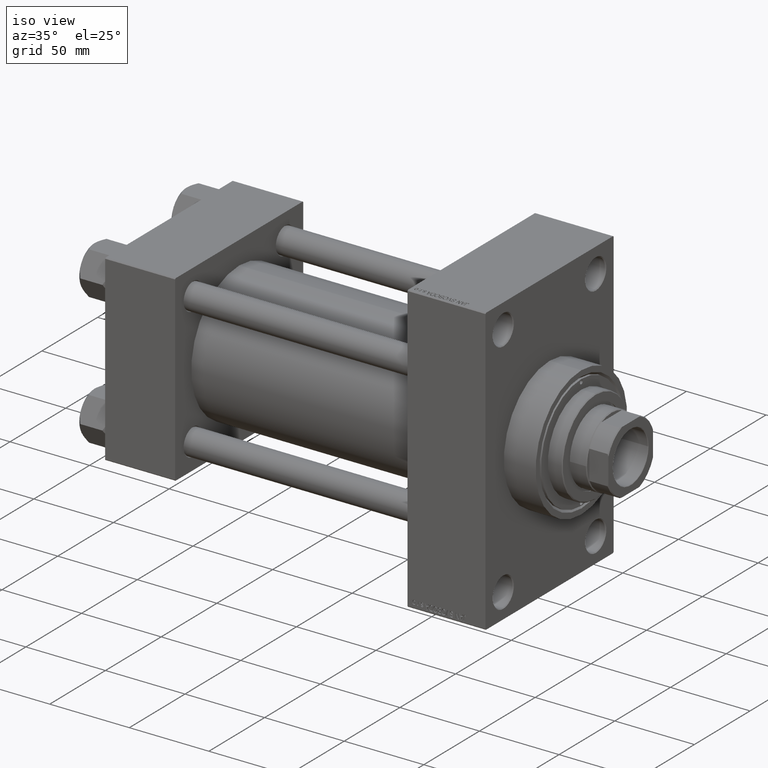
[diagram: clean part render]
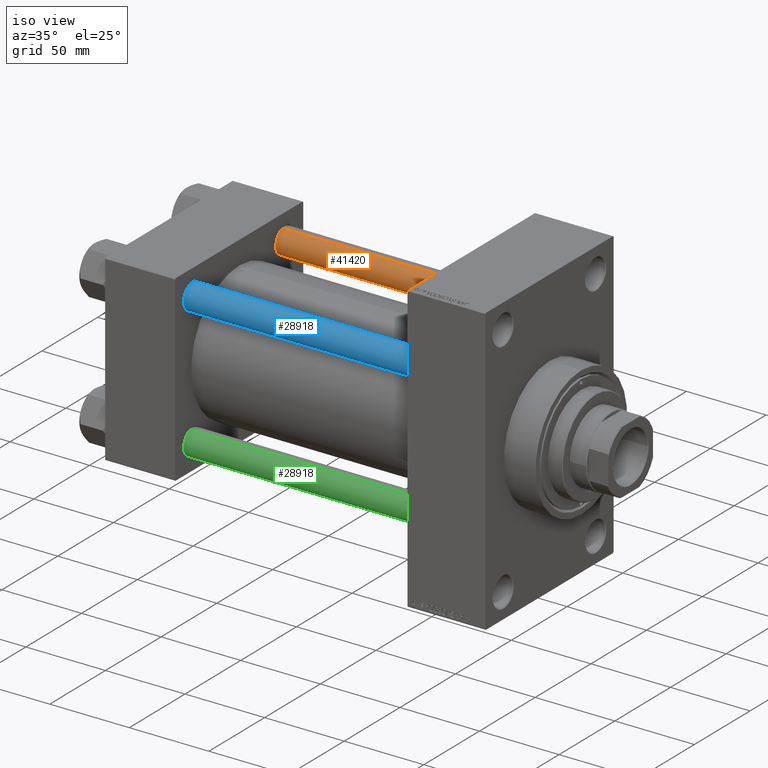
[diagram: same view with three faces highlighted in distinct colors, each labeled with its STEP entity id]
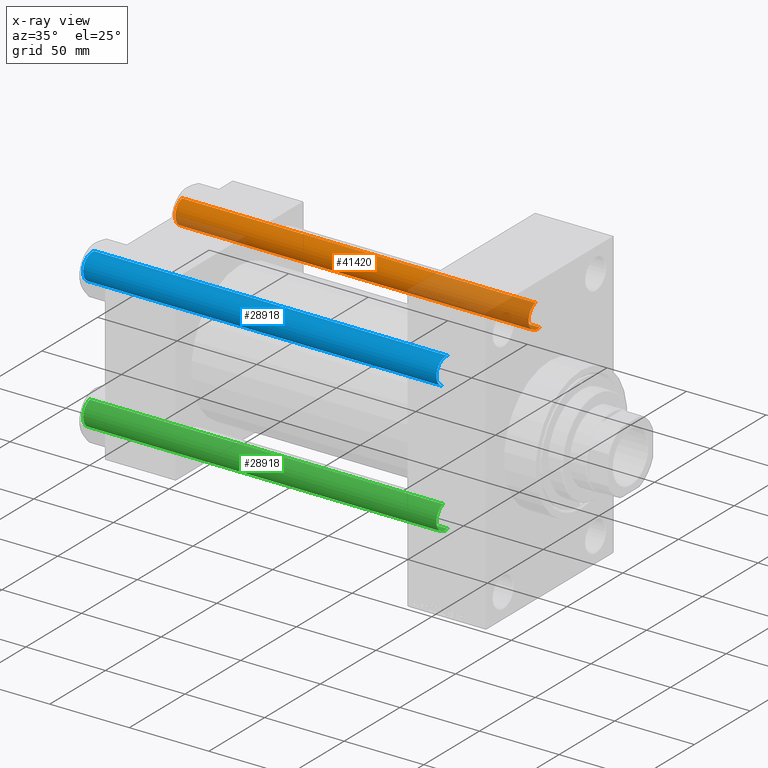
[diagram: x-ray of the same camera — body ghosted, the three highlighted faces saturated]
A machine part, iso view with three faces highlighted in distinct colors.
The next image is the same camera in x-ray (body ghosted, the three faces saturated) — at least one of them is partly hidden behind the body in this view.
Their STEP definitions:

[orange] entity #41420 — the highlighted cylindrical surface (edge-blend (fillet) strip) has radius 8 mm, axis along (-1, -0, 0).
#1560 = VECTOR ( 'NONE', #42982, 1000.000000000000000 ) ;
#3938 = ORIENTED_EDGE ( 'NONE', *, *, #11647, .F. ) ;
#11647 = EDGE_CURVE ( 'NONE', #42482, #12920, #19890, .T. ) ;
#12787 = CARTESIAN_POINT ( 'NONE',  ( 8.000000000000000000, 9.797174393178823685E-16, 222.5000000000001137 ) ) ;
#12920 = VERTEX_POINT ( 'NONE', #21043 ) ;
#13077 = AXIS2_PLACEMENT_3D ( 'NONE', #30745, #45525, #20309 ) ;
#13567 = EDGE_CURVE ( 'NONE', #39512, #25557, #38404, .T. ) ;
#17083 = CARTESIAN_POINT ( 'NONE',  ( -8.000000000000000000, 0.000000000000000000, 223.0000000000000000 ) ) ;
#17376 = AXIS2_PLACEMENT_3D ( 'NONE', #18188, #22275, #36366 ) ;
#18188 = CARTESIAN_POINT ( 'NONE',  ( 0.000000000000000000, 0.000000000000000000, 222.5000000000001137 ) ) ;
#18619 = ORIENTED_EDGE ( 'NONE', *, *, #27924, .T. ) ;
#19258 = VECTOR ( 'NONE', #31038, 1000.000000000000000 ) ;
#19890 = LINE ( 'NONE', #26909, #19258 ) ;
#20309 = DIRECTION ( 'NONE',  ( 1.000000000000000000, 0.000000000000000000, 0.000000000000000000 ) ) ;
#21043 = CARTESIAN_POINT ( 'NONE',  ( 8.000000000000000000, 9.797174393178823685E-16, 0.5000000000001669775 ) ) ;
#21135 = AXIS2_PLACEMENT_3D ( 'NONE', #21983, #44520, #29974 ) ;
#21983 = CARTESIAN_POINT ( 'NONE',  ( 0.000000000000000000, 0.000000000000000000, 223.0000000000000000 ) ) ;
#22275 = DIRECTION ( 'NONE',  ( 0.000000000000000000, 0.000000000000000000, -1.000000000000000000 ) ) ;
#24668 = ORIENTED_EDGE ( 'NONE', *, *, #44288, .T. ) ;
#25557 = VERTEX_POINT ( 'NONE', #31954 ) ;
#26909 = CARTESIAN_POINT ( 'NONE',  ( 8.000000000000000000, 9.797174393178823685E-16, 223.0000000000000000 ) ) ;
#27924 = EDGE_CURVE ( 'NONE', #25557, #12920, #33948, .T. ) ;
#29258 = CYLINDRICAL_SURFACE ( 'NONE', #21135, 8.000000000000000000 ) ;
#29745 = CIRCLE ( 'NONE', #17376, 8.000000000000000000 ) ;
#29974 = DIRECTION ( 'NONE',  ( -1.000000000000000000, 0.000000000000000000, 0.000000000000000000 ) ) ;
#30745 = CARTESIAN_POINT ( 'NONE',  ( 0.000000000000000000, 0.000000000000000000, 0.5000000000001669775 ) ) ;
#31038 = DIRECTION ( 'NONE',  ( -0.000000000000000000, -0.000000000000000000, -1.000000000000000000 ) ) ;
#31954 = CARTESIAN_POINT ( 'NONE',  ( -8.000000000000000000, 0.000000000000000000, 0.5000000000001669775 ) ) ;
#33234 = EDGE_LOOP ( 'NONE', ( #3938, #24668, #43081, #18619 ) ) ;
#33948 = CIRCLE ( 'NONE', #13077, 8.000000000000000000 ) ;
#36366 = DIRECTION ( 'NONE',  ( 1.000000000000000000, 0.000000000000000000, 0.000000000000000000 ) ) ;
#38404 = LINE ( 'NONE', #17083, #1560 ) ;
#38898 = CARTESIAN_POINT ( 'NONE',  ( -8.000000000000000000, 0.000000000000000000, 222.5000000000001137 ) ) ;
#39512 = VERTEX_POINT ( 'NONE', #38898 ) ;
#40646 = FACE_OUTER_BOUND ( 'NONE', #33234, .T. ) ;
#41420 = ADVANCED_FACE ( 'NONE', ( #40646 ), #29258, .T. ) ;
#42482 = VERTEX_POINT ( 'NONE', #12787 ) ;
#42982 = DIRECTION ( 'NONE',  ( -0.000000000000000000, -0.000000000000000000, -1.000000000000000000 ) ) ;
#43081 = ORIENTED_EDGE ( 'NONE', *, *, #13567, .T. ) ;
#44288 = EDGE_CURVE ( 'NONE', #42482, #39512, #29745, .T. ) ;
#44520 = DIRECTION ( 'NONE',  ( -0.000000000000000000, -0.000000000000000000, -1.000000000000000000 ) ) ;
#45525 = DIRECTION ( 'NONE',  ( -0.000000000000000000, -0.000000000000000000, 1.000000000000000000 ) ) ;

[blue] entity #28918 — the highlighted cylindrical surface (edge-blend (fillet) strip) has radius 8 mm, axis along (1, 0, 0).
#1560 = VECTOR ( 'NONE', #42982, 1000.000000000000000 ) ;
#2893 = ORIENTED_EDGE ( 'NONE', *, *, #13567, .F. ) ;
#4607 = AXIS2_PLACEMENT_3D ( 'NONE', #21980, #25378, #24899 ) ;
#5503 = DIRECTION ( 'NONE',  ( 0.000000000000000000, 0.000000000000000000, -1.000000000000000000 ) ) ;
#6268 = CIRCLE ( 'NONE', #29442, 8.000000000000000000 ) ;
#7584 = ORIENTED_EDGE ( 'NONE', *, *, #31829, .T. ) ;
#9920 = CARTESIAN_POINT ( 'NONE',  ( 0.000000000000000000, 0.000000000000000000, 0.5000000000001669775 ) ) ;
#11647 = EDGE_CURVE ( 'NONE', #42482, #12920, #19890, .T. ) ;
#12787 = CARTESIAN_POINT ( 'NONE',  ( 8.000000000000000000, 9.797174393178823685E-16, 222.5000000000001137 ) ) ;
#12920 = VERTEX_POINT ( 'NONE', #21043 ) ;
#13567 = EDGE_CURVE ( 'NONE', #39512, #25557, #38404, .T. ) ;
#17083 = CARTESIAN_POINT ( 'NONE',  ( -8.000000000000000000, 0.000000000000000000, 223.0000000000000000 ) ) ;
#17425 = DIRECTION ( 'NONE',  ( -0.000000000000000000, -0.000000000000000000, 1.000000000000000000 ) ) ;
#19258 = VECTOR ( 'NONE', #31038, 1000.000000000000000 ) ;
#19890 = LINE ( 'NONE', #26909, #19258 ) ;
#21043 = CARTESIAN_POINT ( 'NONE',  ( 8.000000000000000000, 9.797174393178823685E-16, 0.5000000000001669775 ) ) ;
#21980 = CARTESIAN_POINT ( 'NONE',  ( 0.000000000000000000, 0.000000000000000000, 223.0000000000000000 ) ) ;
#22928 = DIRECTION ( 'NONE',  ( 1.000000000000000000, 0.000000000000000000, 0.000000000000000000 ) ) ;
#23650 = DIRECTION ( 'NONE',  ( 1.000000000000000000, 0.000000000000000000, 0.000000000000000000 ) ) ;
#24011 = EDGE_CURVE ( 'NONE', #39512, #42482, #33955, .T. ) ;
#24899 = DIRECTION ( 'NONE',  ( -1.000000000000000000, 0.000000000000000000, 0.000000000000000000 ) ) ;
#25352 = ORIENTED_EDGE ( 'NONE', *, *, #11647, .T. ) ;
#25378 = DIRECTION ( 'NONE',  ( -0.000000000000000000, -0.000000000000000000, -1.000000000000000000 ) ) ;
#25557 = VERTEX_POINT ( 'NONE', #31954 ) ;
#26909 = CARTESIAN_POINT ( 'NONE',  ( 8.000000000000000000, 9.797174393178823685E-16, 223.0000000000000000 ) ) ;
#28918 = ADVANCED_FACE ( 'NONE', ( #40399 ), #36301, .T. ) ;
#29442 = AXIS2_PLACEMENT_3D ( 'NONE', #9920, #17425, #22928 ) ;
#31038 = DIRECTION ( 'NONE',  ( -0.000000000000000000, -0.000000000000000000, -1.000000000000000000 ) ) ;
#31829 = EDGE_CURVE ( 'NONE', #12920, #25557, #6268, .T. ) ;
#31875 = EDGE_LOOP ( 'NONE', ( #47612, #25352, #7584, #2893 ) ) ;
#31954 = CARTESIAN_POINT ( 'NONE',  ( -8.000000000000000000, 0.000000000000000000, 0.5000000000001669775 ) ) ;
#32300 = CARTESIAN_POINT ( 'NONE',  ( 0.000000000000000000, 0.000000000000000000, 222.5000000000001137 ) ) ;
#33955 = CIRCLE ( 'NONE', #44018, 8.000000000000000000 ) ;
#36301 = CYLINDRICAL_SURFACE ( 'NONE', #4607, 8.000000000000000000 ) ;
#38404 = LINE ( 'NONE', #17083, #1560 ) ;
#38898 = CARTESIAN_POINT ( 'NONE',  ( -8.000000000000000000, 0.000000000000000000, 222.5000000000001137 ) ) ;
#39512 = VERTEX_POINT ( 'NONE', #38898 ) ;
#40399 = FACE_OUTER_BOUND ( 'NONE', #31875, .T. ) ;
#42482 = VERTEX_POINT ( 'NONE', #12787 ) ;
#42982 = DIRECTION ( 'NONE',  ( -0.000000000000000000, -0.000000000000000000, -1.000000000000000000 ) ) ;
#44018 = AXIS2_PLACEMENT_3D ( 'NONE', #32300, #5503, #23650 ) ;
#47612 = ORIENTED_EDGE ( 'NONE', *, *, #24011, .T. ) ;

[green] entity #28918 — the highlighted cylindrical surface (edge-blend (fillet) strip) has radius 8 mm, axis along (-1, 0, 0).
#1560 = VECTOR ( 'NONE', #42982, 1000.000000000000000 ) ;
#2893 = ORIENTED_EDGE ( 'NONE', *, *, #13567, .F. ) ;
#4607 = AXIS2_PLACEMENT_3D ( 'NONE', #21980, #25378, #24899 ) ;
#5503 = DIRECTION ( 'NONE',  ( 0.000000000000000000, 0.000000000000000000, -1.000000000000000000 ) ) ;
#6268 = CIRCLE ( 'NONE', #29442, 8.000000000000000000 ) ;
#7584 = ORIENTED_EDGE ( 'NONE', *, *, #31829, .T. ) ;
#9920 = CARTESIAN_POINT ( 'NONE',  ( 0.000000000000000000, 0.000000000000000000, 0.5000000000001669775 ) ) ;
#11647 = EDGE_CURVE ( 'NONE', #42482, #12920, #19890, .T. ) ;
#12787 = CARTESIAN_POINT ( 'NONE',  ( 8.000000000000000000, 9.797174393178823685E-16, 222.5000000000001137 ) ) ;
#12920 = VERTEX_POINT ( 'NONE', #21043 ) ;
#13567 = EDGE_CURVE ( 'NONE', #39512, #25557, #38404, .T. ) ;
#17083 = CARTESIAN_POINT ( 'NONE',  ( -8.000000000000000000, 0.000000000000000000, 223.0000000000000000 ) ) ;
#17425 = DIRECTION ( 'NONE',  ( -0.000000000000000000, -0.000000000000000000, 1.000000000000000000 ) ) ;
#19258 = VECTOR ( 'NONE', #31038, 1000.000000000000000 ) ;
#19890 = LINE ( 'NONE', #26909, #19258 ) ;
#21043 = CARTESIAN_POINT ( 'NONE',  ( 8.000000000000000000, 9.797174393178823685E-16, 0.5000000000001669775 ) ) ;
#21980 = CARTESIAN_POINT ( 'NONE',  ( 0.000000000000000000, 0.000000000000000000, 223.0000000000000000 ) ) ;
#22928 = DIRECTION ( 'NONE',  ( 1.000000000000000000, 0.000000000000000000, 0.000000000000000000 ) ) ;
#23650 = DIRECTION ( 'NONE',  ( 1.000000000000000000, 0.000000000000000000, 0.000000000000000000 ) ) ;
#24011 = EDGE_CURVE ( 'NONE', #39512, #42482, #33955, .T. ) ;
#24899 = DIRECTION ( 'NONE',  ( -1.000000000000000000, 0.000000000000000000, 0.000000000000000000 ) ) ;
#25352 = ORIENTED_EDGE ( 'NONE', *, *, #11647, .T. ) ;
#25378 = DIRECTION ( 'NONE',  ( -0.000000000000000000, -0.000000000000000000, -1.000000000000000000 ) ) ;
#25557 = VERTEX_POINT ( 'NONE', #31954 ) ;
#26909 = CARTESIAN_POINT ( 'NONE',  ( 8.000000000000000000, 9.797174393178823685E-16, 223.0000000000000000 ) ) ;
#28918 = ADVANCED_FACE ( 'NONE', ( #40399 ), #36301, .T. ) ;
#29442 = AXIS2_PLACEMENT_3D ( 'NONE', #9920, #17425, #22928 ) ;
#31038 = DIRECTION ( 'NONE',  ( -0.000000000000000000, -0.000000000000000000, -1.000000000000000000 ) ) ;
#31829 = EDGE_CURVE ( 'NONE', #12920, #25557, #6268, .T. ) ;
#31875 = EDGE_LOOP ( 'NONE', ( #47612, #25352, #7584, #2893 ) ) ;
#31954 = CARTESIAN_POINT ( 'NONE',  ( -8.000000000000000000, 0.000000000000000000, 0.5000000000001669775 ) ) ;
#32300 = CARTESIAN_POINT ( 'NONE',  ( 0.000000000000000000, 0.000000000000000000, 222.5000000000001137 ) ) ;
#33955 = CIRCLE ( 'NONE', #44018, 8.000000000000000000 ) ;
#36301 = CYLINDRICAL_SURFACE ( 'NONE', #4607, 8.000000000000000000 ) ;
#38404 = LINE ( 'NONE', #17083, #1560 ) ;
#38898 = CARTESIAN_POINT ( 'NONE',  ( -8.000000000000000000, 0.000000000000000000, 222.5000000000001137 ) ) ;
#39512 = VERTEX_POINT ( 'NONE', #38898 ) ;
#40399 = FACE_OUTER_BOUND ( 'NONE', #31875, .T. ) ;
#42482 = VERTEX_POINT ( 'NONE', #12787 ) ;
#42982 = DIRECTION ( 'NONE',  ( -0.000000000000000000, -0.000000000000000000, -1.000000000000000000 ) ) ;
#44018 = AXIS2_PLACEMENT_3D ( 'NONE', #32300, #5503, #23650 ) ;
#47612 = ORIENTED_EDGE ( 'NONE', *, *, #24011, .T. ) ;